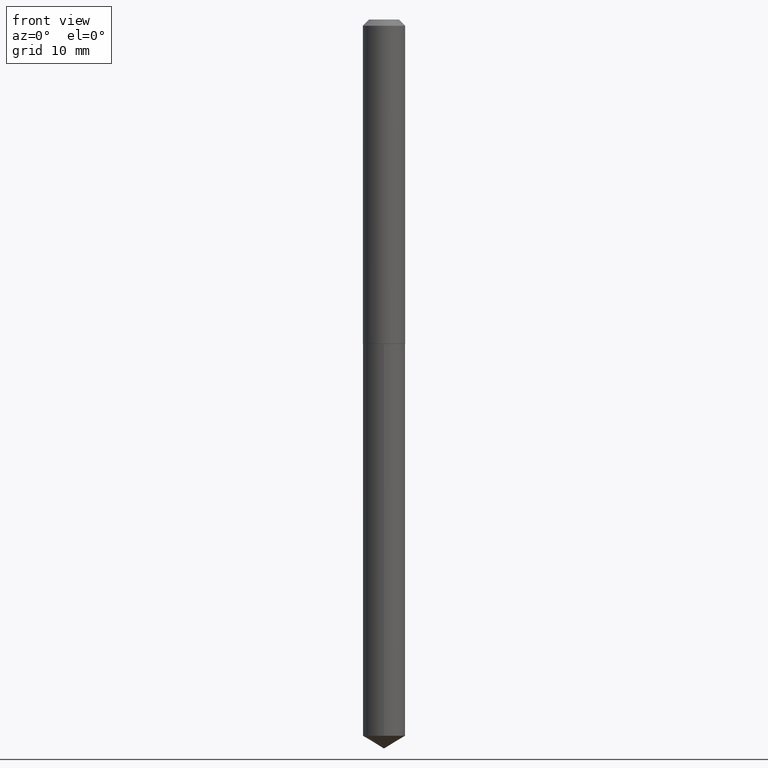
[diagram: clean part render]
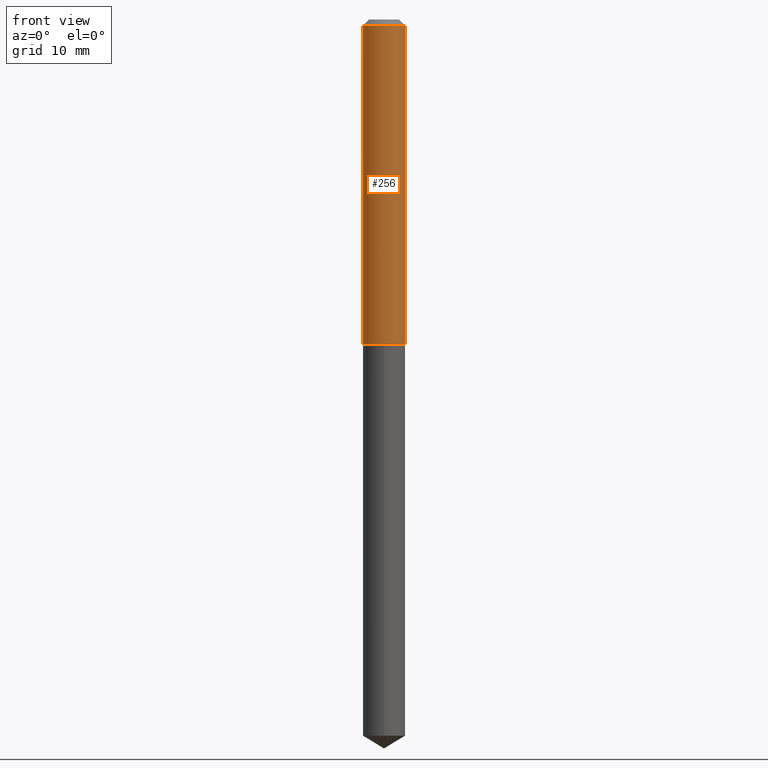
[diagram: same view with one face highlighted and labeled with its STEP entity id]
A machine part, front view. The second image highlights one B-rep face of the part: STEP entity #256.
In plain terms, the highlighted cylindrical surface (edge-blend (fillet) strip) has radius 2.7 mm, axis along (-0, 0, 1).
Its self-contained STEP definition (entity closure, byte-faithful):
#3 = CARTESIAN_POINT ( 'NONE',  ( 0.1063000000000000195, -8.513977244768993380E-16, -0.03125000000000021511 ) ) ;
#4 = VECTOR ( 'NONE', #248, 39.37007874015748143 ) ;
#8 = CARTESIAN_POINT ( 'NONE',  ( 3.984646872798061156E-29, -5.689019693511021444E-15, -1.629399999999999737 ) ) ;
#20 = VERTEX_POINT ( 'NONE', #194 ) ;
#26 = AXIS2_PLACEMENT_3D ( 'NONE', #67, #243, #70 ) ;
#28 = CARTESIAN_POINT ( 'NONE',  ( 7.642090019328603538E-31, -1.091087918388490390E-16, -0.03125000000000021511 ) ) ;
#30 = DIRECTION ( 'NONE',  ( -2.445468806185136597E-29, 3.491481338843145583E-15, 1.000000000000000000 ) ) ;
#37 = FACE_OUTER_BOUND ( 'NONE', #136, .T. ) ;
#63 = DIRECTION ( 'NONE',  ( 1.000000000000000000, -6.982962677686265922E-15, 0.000000000000000000 ) ) ;
#67 = CARTESIAN_POINT ( 'NONE',  ( 0.000000000000000000, 0.000000000000000000, 0.000000000000000000 ) ) ;
#70 = DIRECTION ( 'NONE',  ( 1.000000000000000000, -6.982962677686266711E-15, 4.876176775795935793E-29 ) ) ;
#91 = ORIENTED_EDGE ( 'NONE', *, *, #147, .F. ) ;
#102 = DIRECTION ( 'NONE',  ( 1.000000000000000000, -6.982962677686263555E-15, 0.000000000000000000 ) ) ;
#108 = VERTEX_POINT ( 'NONE', #171 ) ;
#119 = LINE ( 'NONE', #384, #221 ) ;
#128 = LINE ( 'NONE', #219, #4 ) ;
#132 = DIRECTION ( 'NONE',  ( -2.445468806185136597E-29, 3.491481338843145583E-15, 1.000000000000000000 ) ) ;
#136 = EDGE_LOOP ( 'NONE', ( #366, #228, #383, #91 ) ) ;
#140 = DIRECTION ( 'NONE',  ( -2.445468806185136877E-29, 3.491481338843145188E-15, 1.000000000000000000 ) ) ;
#143 = VERTEX_POINT ( 'NONE', #290 ) ;
#147 = EDGE_CURVE ( 'NONE', #108, #387, #369, .T. ) ;
#157 = EDGE_CURVE ( 'NONE', #20, #108, #119, .T. ) ;
#171 = CARTESIAN_POINT ( 'NONE',  ( -0.1063000000000000195, -2.143757314561946763E-15, -0.03125000000000021511 ) ) ;
#192 = AXIS2_PLACEMENT_3D ( 'NONE', #28, #30, #63 ) ;
#194 = CARTESIAN_POINT ( 'NONE',  ( -0.1063000000000002276, -4.933712765398033723E-15, -1.629399999999999737 ) ) ;
#219 = CARTESIAN_POINT ( 'NONE',  ( 0.1063000000000001166, -7.422889326380509276E-16, 5.183375912671085656E-30 ) ) ;
#221 = VECTOR ( 'NONE', #140, 39.37007874015748143 ) ;
#227 = EDGE_CURVE ( 'NONE', #143, #387, #128, .T. ) ;
#228 = ORIENTED_EDGE ( 'NONE', *, *, #329, .T. ) ;
#243 = DIRECTION ( 'NONE',  ( -2.445468806185136597E-29, 3.491481338843145583E-15, 1.000000000000000000 ) ) ;
#248 = DIRECTION ( 'NONE',  ( -2.445468806185136877E-29, 3.491481338843145188E-15, 1.000000000000000000 ) ) ;
#256 = ADVANCED_FACE ( 'NONE', ( #37 ), #364, .T. ) ;
#290 = CARTESIAN_POINT ( 'NONE',  ( 0.1063000000000002276, -6.431308626149072372E-15, -1.629399999999999737 ) ) ;
#313 = CIRCLE ( 'NONE', #347, 0.1063000000000002276 ) ;
#329 = EDGE_CURVE ( 'NONE', #20, #143, #313, .T. ) ;
#347 = AXIS2_PLACEMENT_3D ( 'NONE', #8, #132, #102 ) ;
#364 = CYLINDRICAL_SURFACE ( 'NONE', #26, 0.1063000000000001166 ) ;
#366 = ORIENTED_EDGE ( 'NONE', *, *, #157, .F. ) ;
#369 = CIRCLE ( 'NONE', #192, 0.1063000000000000195 ) ;
#383 = ORIENTED_EDGE ( 'NONE', *, *, #227, .T. ) ;
#384 = CARTESIAN_POINT ( 'NONE',  ( -0.1063000000000001166, 7.553069281129873262E-16, -5.228828000940970663E-30 ) ) ;
#387 = VERTEX_POINT ( 'NONE', #3 ) ;